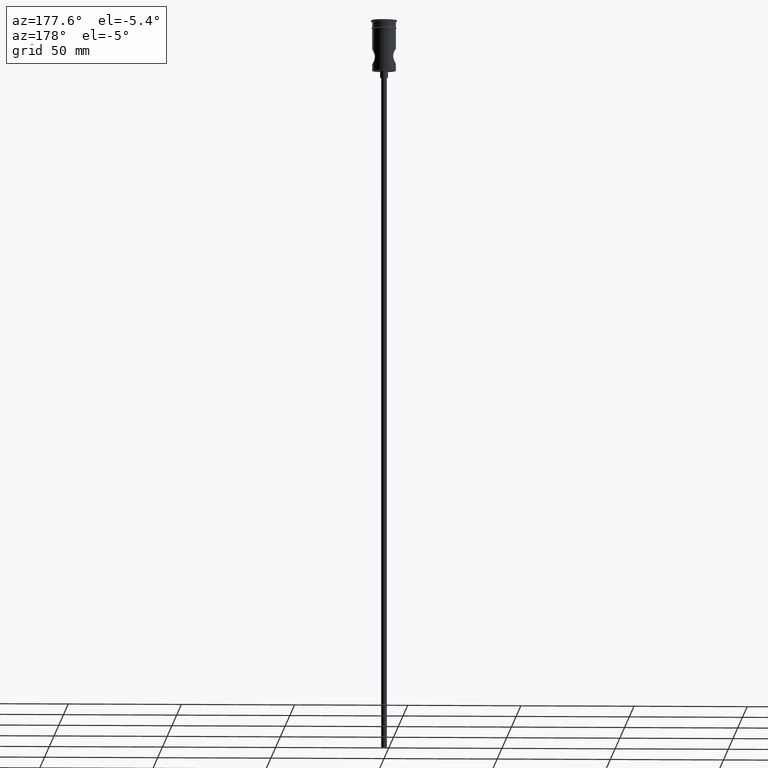
[diagram: clean part render]
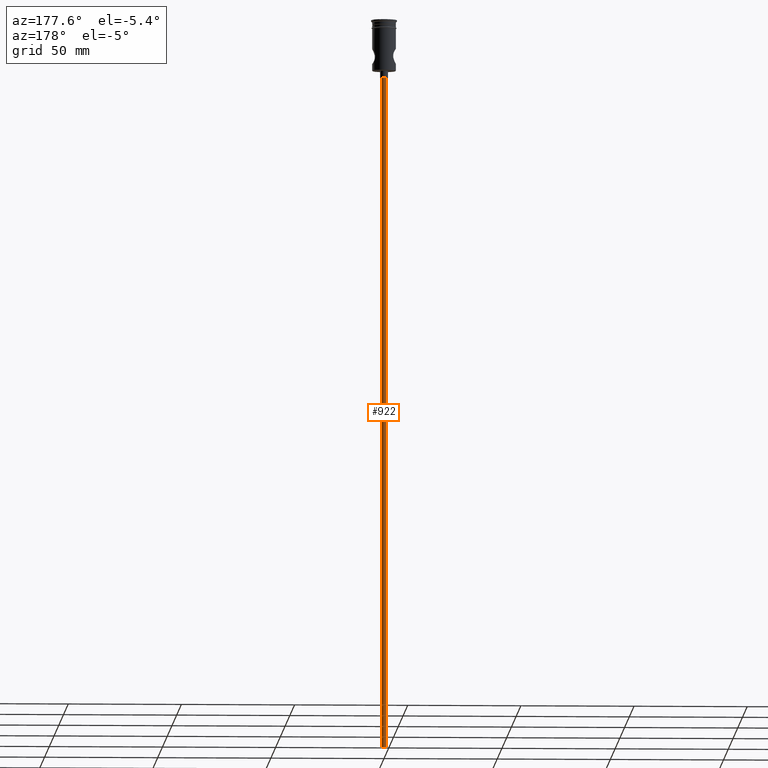
[diagram: same view with one face highlighted and labeled with its STEP entity id]
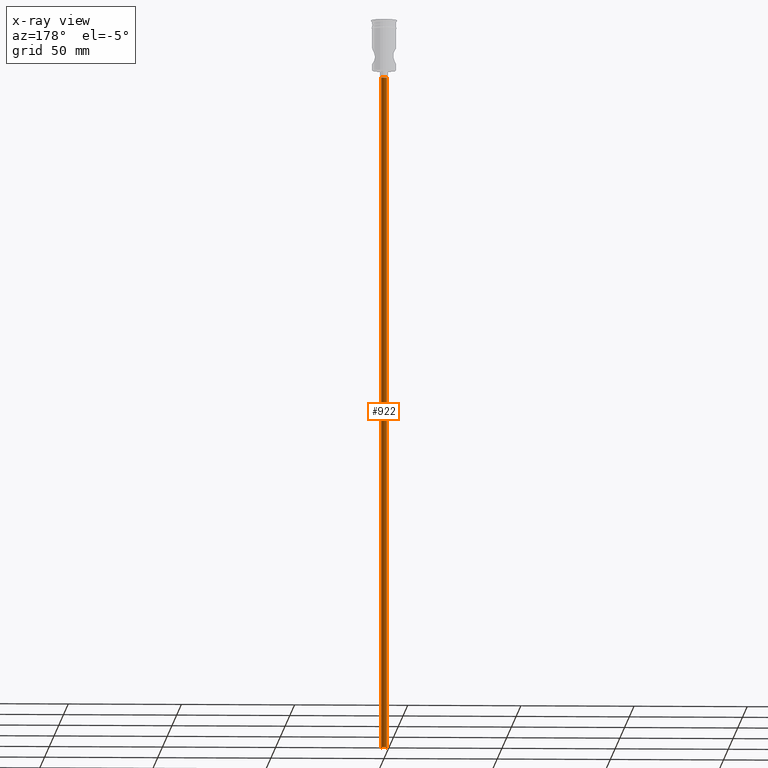
[diagram: x-ray of the same camera — body ghosted, the highlighted face saturated]
A machine part, auxiliary view. The second image highlights one B-rep face of the part: STEP entity #922.
The next image is the same camera in x-ray: the body ghosted, the highlighted face saturated — about 0% of this face is hidden behind the body in this view.
In plain terms, the highlighted cylindrical surface (edge-blend (fillet) strip) has radius 1.25 mm, axis along (-0, -0, 1).
Its self-contained STEP definition (entity closure, byte-faithful):
#19 = DIRECTION ( 'NONE',  ( -0.000000000000000000, -0.000000000000000000, 1.000000000000000000 ) ) ;
#63 = CIRCLE ( 'NONE', #909, 1.250000000000000000 ) ;
#64 = VERTEX_POINT ( 'NONE', #559 ) ;
#68 = DIRECTION ( 'NONE',  ( 0.000000000000000000, 0.000000000000000000, -1.000000000000000000 ) ) ;
#69 = CARTESIAN_POINT ( 'NONE',  ( 1.250000000000000000, 0.000000000000000000, -25.50000000000000000 ) ) ;
#80 = DIRECTION ( 'NONE',  ( -0.000000000000000000, -0.000000000000000000, 1.000000000000000000 ) ) ;
#86 = VERTEX_POINT ( 'NONE', #1118 ) ;
#93 = FACE_OUTER_BOUND ( 'NONE', #603, .T. ) ;
#154 = EDGE_CURVE ( 'NONE', #86, #1336, #772, .T. ) ;
#176 = DIRECTION ( 'NONE',  ( -1.000000000000000000, 0.000000000000000000, 0.000000000000000000 ) ) ;
#189 = CYLINDRICAL_SURFACE ( 'NONE', #1140, 1.250000000000000000 ) ;
#220 = CARTESIAN_POINT ( 'NONE',  ( 0.000000000000000000, 0.000000000000000000, -25.50000000000000000 ) ) ;
#265 = EDGE_CURVE ( 'NONE', #86, #64, #1024, .T. ) ;
#281 = ORIENTED_EDGE ( 'NONE', *, *, #1407, .F. ) ;
#367 = ORIENTED_EDGE ( 'NONE', *, *, #154, .T. ) ;
#371 = AXIS2_PLACEMENT_3D ( 'NONE', #797, #68, #176 ) ;
#505 = LINE ( 'NONE', #597, #1081 ) ;
#517 = CARTESIAN_POINT ( 'NONE',  ( 0.000000000000000000, 0.000000000000000000, -322.5000000000000000 ) ) ;
#559 = CARTESIAN_POINT ( 'NONE',  ( 1.250000000000000000, 0.000000000000000000, -322.5000000000000000 ) ) ;
#560 = DIRECTION ( 'NONE',  ( 0.000000000000000000, 0.000000000000000000, -1.000000000000000000 ) ) ;
#568 = CARTESIAN_POINT ( 'NONE',  ( -1.250000000000000000, 1.530808498934191571E-16, -322.5000000000000000 ) ) ;
#597 = CARTESIAN_POINT ( 'NONE',  ( 1.250000000000000000, 0.000000000000000000, -322.5000000000000000 ) ) ;
#603 = EDGE_LOOP ( 'NONE', ( #1286, #367, #910, #281 ) ) ;
#656 = DIRECTION ( 'NONE',  ( -1.000000000000000000, 0.000000000000000000, 0.000000000000000000 ) ) ;
#698 = DIRECTION ( 'NONE',  ( -0.000000000000000000, -0.000000000000000000, 1.000000000000000000 ) ) ;
#772 = LINE ( 'NONE', #568, #897 ) ;
#797 = CARTESIAN_POINT ( 'NONE',  ( 0.000000000000000000, 0.000000000000000000, -322.5000000000000000 ) ) ;
#897 = VECTOR ( 'NONE', #19, 1000.000000000000000 ) ;
#909 = AXIS2_PLACEMENT_3D ( 'NONE', #220, #560, #656 ) ;
#910 = ORIENTED_EDGE ( 'NONE', *, *, #1015, .T. ) ;
#922 = ADVANCED_FACE ( 'NONE', ( #93 ), #189, .T. ) ;
#1006 = CARTESIAN_POINT ( 'NONE',  ( -1.250000000000000000, 1.530808498934191571E-16, -25.50000000000000000 ) ) ;
#1015 = EDGE_CURVE ( 'NONE', #1336, #1402, #63, .T. ) ;
#1024 = CIRCLE ( 'NONE', #371, 1.250000000000000000 ) ;
#1081 = VECTOR ( 'NONE', #698, 1000.000000000000000 ) ;
#1118 = CARTESIAN_POINT ( 'NONE',  ( -1.250000000000000000, 1.530808498934191571E-16, -322.5000000000000000 ) ) ;
#1140 = AXIS2_PLACEMENT_3D ( 'NONE', #517, #80, #1386 ) ;
#1286 = ORIENTED_EDGE ( 'NONE', *, *, #265, .F. ) ;
#1336 = VERTEX_POINT ( 'NONE', #1006 ) ;
#1386 = DIRECTION ( 'NONE',  ( 1.000000000000000000, 0.000000000000000000, 0.000000000000000000 ) ) ;
#1402 = VERTEX_POINT ( 'NONE', #69 ) ;
#1407 = EDGE_CURVE ( 'NONE', #64, #1402, #505, .T. ) ;